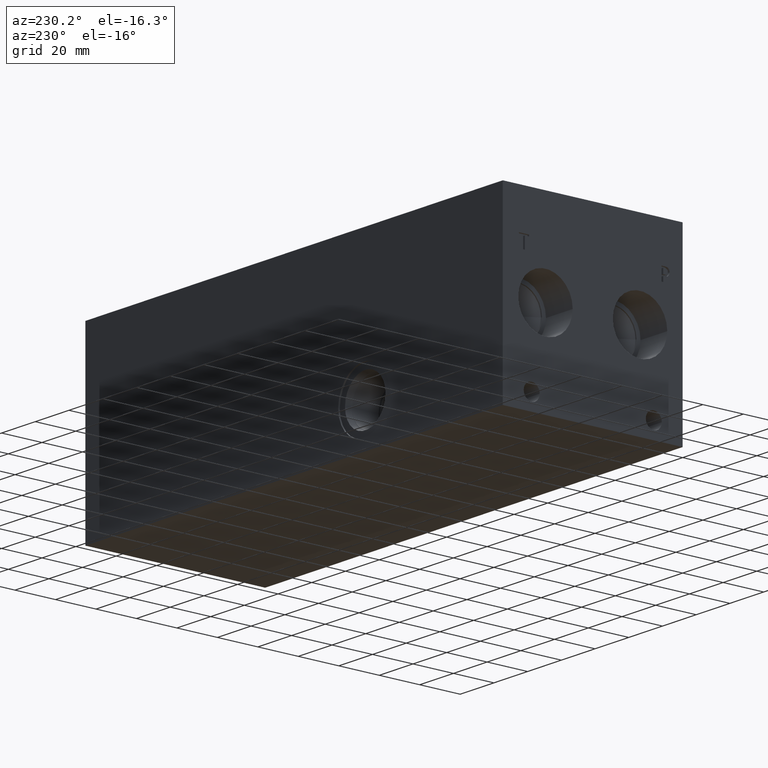
[diagram: clean part render]
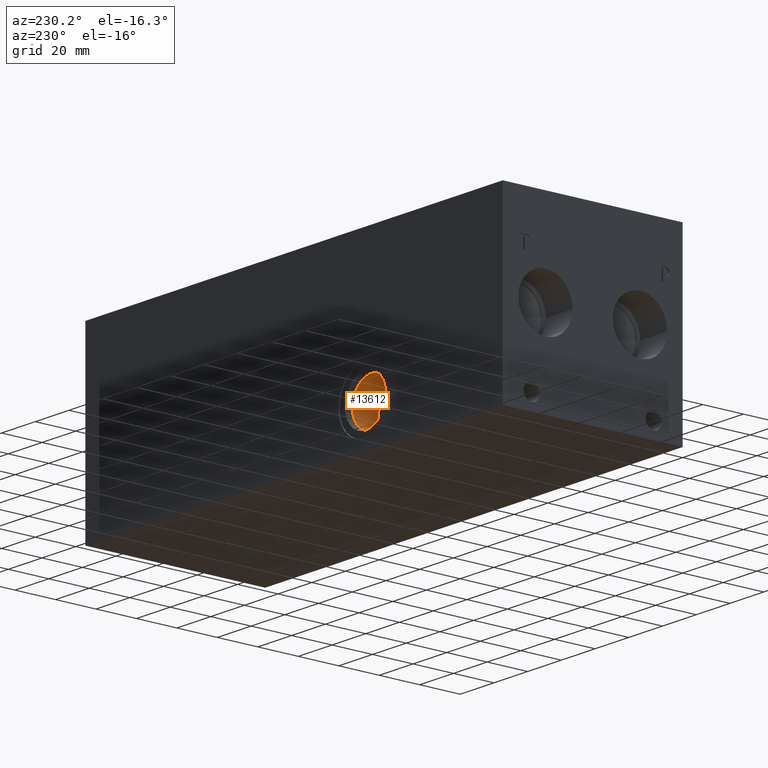
[diagram: same view with one face highlighted and labeled with its STEP entity id]
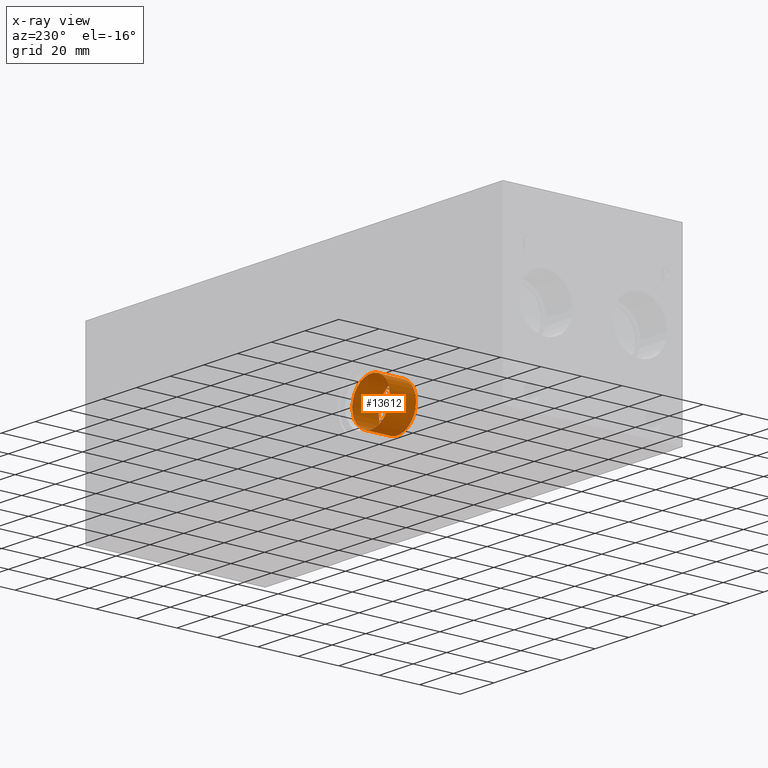
[diagram: x-ray of the same camera — body ghosted, the highlighted face saturated]
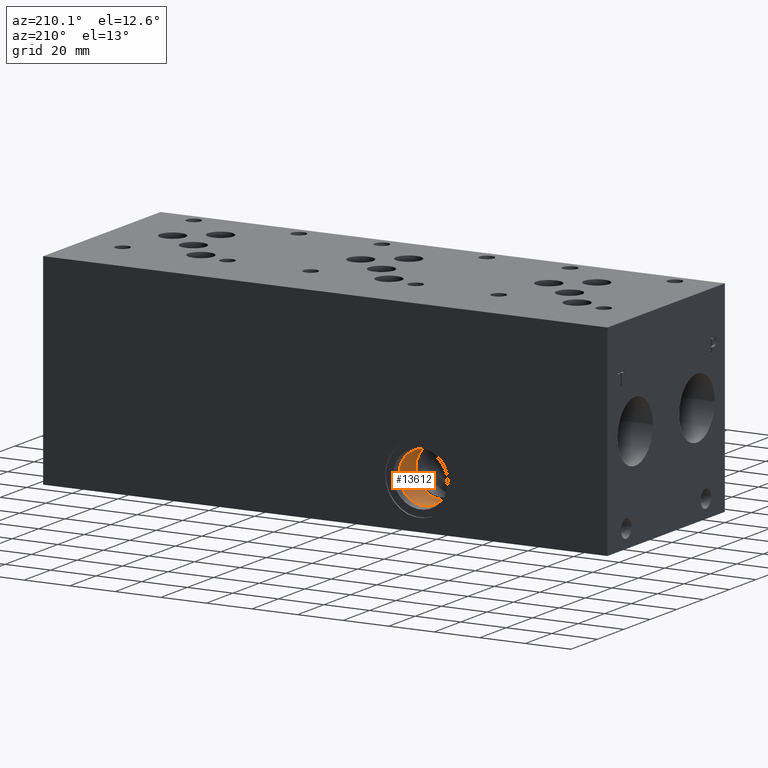
[diagram: same view with one face highlighted and labeled with its STEP entity id]
A machine part, auxiliary view. The second image highlights one B-rep face of the part: STEP entity #13612.
The next image is the same camera in x-ray: the body ghosted, the highlighted face saturated — about 0% of this face is hidden behind the body in this view.
A second angle (auxiliary view) of the same face is appended — the face is thin or edge-on in the first view.
In plain terms, the highlighted cylindrical surface (bore or boss wall) has radius 11.115 mm, axis along (0, -1, 0).
Its self-contained STEP definition (entity closure, byte-faithful):
#60=CYLINDRICAL_SURFACE('',#14178,11.115);
#365=CIRCLE('',#14176,11.115);
#366=CIRCLE('',#14177,11.115);
#367=CIRCLE('',#14179,11.115);
#368=CIRCLE('',#14180,11.115);
#1658=FACE_OUTER_BOUND('',#2431,.T.);
#2431=EDGE_LOOP('',(#11391,#11392,#11393,#11394,#11395,#11396));
#3760=LINE('',#23050,#5004);
#5004=VECTOR('',#16491,11.115);
#6170=VERTEX_POINT('',#23043);
#6171=VERTEX_POINT('',#23045);
#6172=VERTEX_POINT('',#23049);
#6173=VERTEX_POINT('',#23051);
#7993=EDGE_CURVE('',#6170,#6171,#365,.T.);
#7994=EDGE_CURVE('',#6171,#6170,#366,.T.);
#7995=EDGE_CURVE('',#6170,#6172,#3760,.T.);
#7996=EDGE_CURVE('',#6172,#6173,#367,.T.);
#7997=EDGE_CURVE('',#6173,#6172,#368,.T.);
#11391=ORIENTED_EDGE('',*,*,#7994,.F.);
#11392=ORIENTED_EDGE('',*,*,#7993,.F.);
#11393=ORIENTED_EDGE('',*,*,#7995,.T.);
#11394=ORIENTED_EDGE('',*,*,#7996,.T.);
#11395=ORIENTED_EDGE('',*,*,#7997,.T.);
#11396=ORIENTED_EDGE('',*,*,#7995,.F.);
#13612=ADVANCED_FACE('',(#1658),#60,.F.);
#14176=AXIS2_PLACEMENT_3D('',#23046,#16485,#16486);
#14177=AXIS2_PLACEMENT_3D('',#23047,#16487,#16488);
#14178=AXIS2_PLACEMENT_3D('',#23048,#16489,#16490);
#14179=AXIS2_PLACEMENT_3D('',#23052,#16492,#16493);
#14180=AXIS2_PLACEMENT_3D('',#23053,#16494,#16495);
#16485=DIRECTION('center_axis',(0.,-1.,0.));
#16486=DIRECTION('ref_axis',(1.,0.,0.));
#16487=DIRECTION('center_axis',(0.,-1.,0.));
#16488=DIRECTION('ref_axis',(1.,0.,0.));
#16489=DIRECTION('center_axis',(0.,-1.,0.));
#16490=DIRECTION('ref_axis',(1.,0.,0.));
#16491=DIRECTION('',(0.,-1.,0.));
#16492=DIRECTION('center_axis',(0.,-1.,0.));
#16493=DIRECTION('ref_axis',(1.,0.,0.));
#16494=DIRECTION('center_axis',(0.,-1.,0.));
#16495=DIRECTION('ref_axis',(1.,0.,0.));
#23043=CARTESIAN_POINT('',(71.435,85.225,20.6502));
#23045=CARTESIAN_POINT('',(93.665,85.225,20.6502));
#23046=CARTESIAN_POINT('Origin',(82.55,85.225,20.6502));
#23047=CARTESIAN_POINT('Origin',(82.55,85.225,20.6502));
#23048=CARTESIAN_POINT('Origin',(82.55,78.7275,20.6502));
#23049=CARTESIAN_POINT('',(71.435,72.23,20.6502));
#23050=CARTESIAN_POINT('',(71.435,78.7275,20.6502));
#23051=CARTESIAN_POINT('',(93.665,72.23,20.6502));
#23052=CARTESIAN_POINT('Origin',(82.55,72.23,20.6502));
#23053=CARTESIAN_POINT('Origin',(82.55,72.23,20.6502));